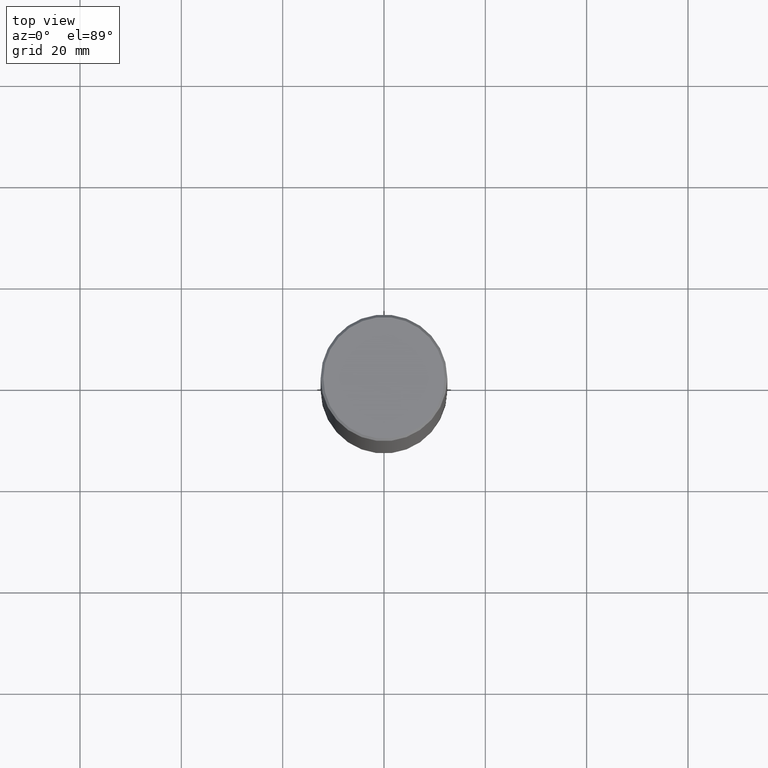
[diagram: clean part render]
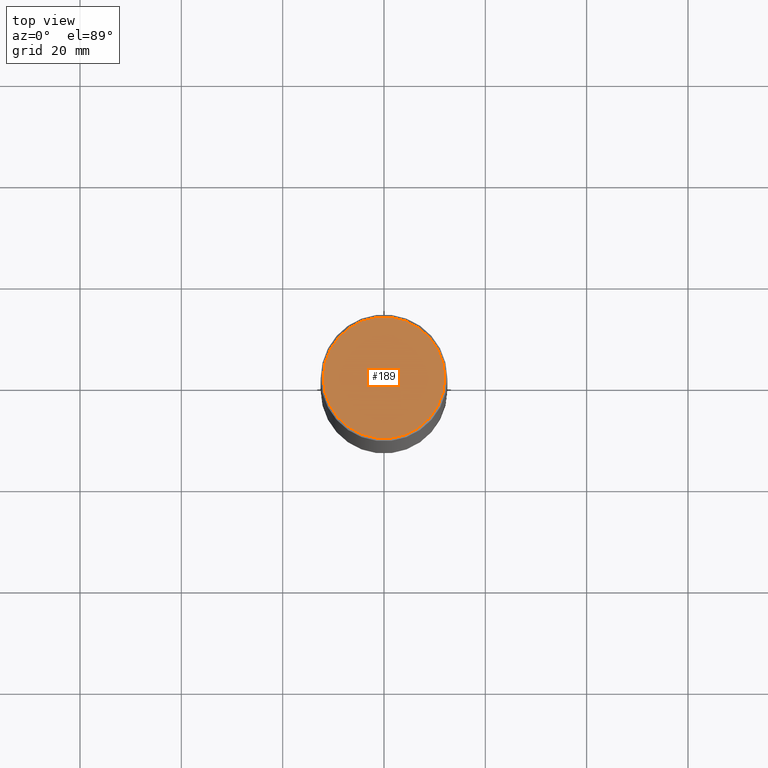
[diagram: same view with one face highlighted and labeled with its STEP entity id]
A machine part, top view. The second image highlights one B-rep face of the part: STEP entity #189.
In plain terms, the highlighted planar face has unit normal (0, -0, -1).
Its self-contained STEP definition (entity closure, byte-faithful):
#5 = AXIS2_PLACEMENT_3D ( 'NONE', #360, #216, #81 ) ;
#10 = PLANE ( 'NONE',  #362 ) ;
#12 = ORIENTED_EDGE ( 'NONE', *, *, #226, .T. ) ;
#23 = AXIS2_PLACEMENT_3D ( 'NONE', #28, #253, #93 ) ;
#28 = CARTESIAN_POINT ( 'NONE',  ( -2.087702828670439639E-46, 2.980686340760894400E-32, 8.537024980200822558E-18 ) ) ;
#39 = VERTEX_POINT ( 'NONE', #52 ) ;
#52 = CARTESIAN_POINT ( 'NONE',  ( -0.4721499999999996255, 3.331920641657998857E-15, 8.537024980177643606E-18 ) ) ;
#81 = DIRECTION ( 'NONE',  ( 1.000000000000000000, -6.982962677686265922E-15, 4.876006802227162976E-29 ) ) ;
#82 = CARTESIAN_POINT ( 'NONE',  ( 0.4721499999999996255, -3.342703923013973002E-15, 8.537024980224040028E-18 ) ) ;
#93 = DIRECTION ( 'NONE',  ( 1.000000000000000000, -6.982962677686265922E-15, 4.876006802227162976E-29 ) ) ;
#108 = CIRCLE ( 'NONE', #23, 0.4721499999999996255 ) ;
#118 = DIRECTION ( 'NONE',  ( -1.000000000000000000, 6.982962677686265922E-15, -4.876176775795935793E-29 ) ) ;
#171 = EDGE_LOOP ( 'NONE', ( #12, #293 ) ) ;
#189 = ADVANCED_FACE ( 'NONE', ( #264 ), #10, .F. ) ;
#216 = DIRECTION ( 'NONE',  ( -2.445468806185136597E-29, 3.491481338843145583E-15, 1.000000000000000000 ) ) ;
#226 = EDGE_CURVE ( 'NONE', #39, #330, #229, .T. ) ;
#229 = CIRCLE ( 'NONE', #5, 0.4721499999999996255 ) ;
#238 = CARTESIAN_POINT ( 'NONE',  ( 3.297005828269567997E-15, 0.4721499999999996255, -1.644234401644689488E-15 ) ) ;
#253 = DIRECTION ( 'NONE',  ( -2.445468806185136597E-29, 3.491481338843145583E-15, 1.000000000000000000 ) ) ;
#264 = FACE_OUTER_BOUND ( 'NONE', #171, .T. ) ;
#266 = DIRECTION ( 'NONE',  ( 2.438088387897960049E-29, -3.491481338843145188E-15, -1.000000000000000000 ) ) ;
#267 = EDGE_CURVE ( 'NONE', #330, #39, #108, .T. ) ;
#293 = ORIENTED_EDGE ( 'NONE', *, *, #267, .T. ) ;
#330 = VERTEX_POINT ( 'NONE', #82 ) ;
#360 = CARTESIAN_POINT ( 'NONE',  ( -2.087702828670439639E-46, 2.980686340760894400E-32, 8.537024980200822558E-18 ) ) ;
#362 = AXIS2_PLACEMENT_3D ( 'NONE', #238, #266, #118 ) ;